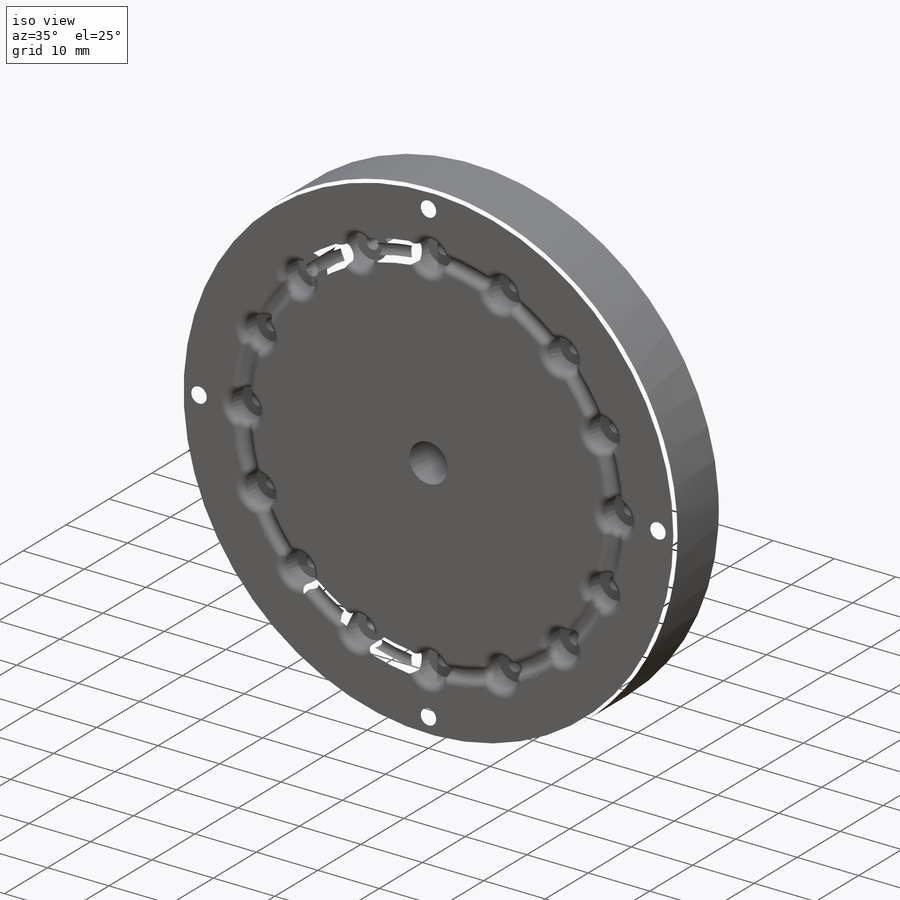
[diagram: iso view]
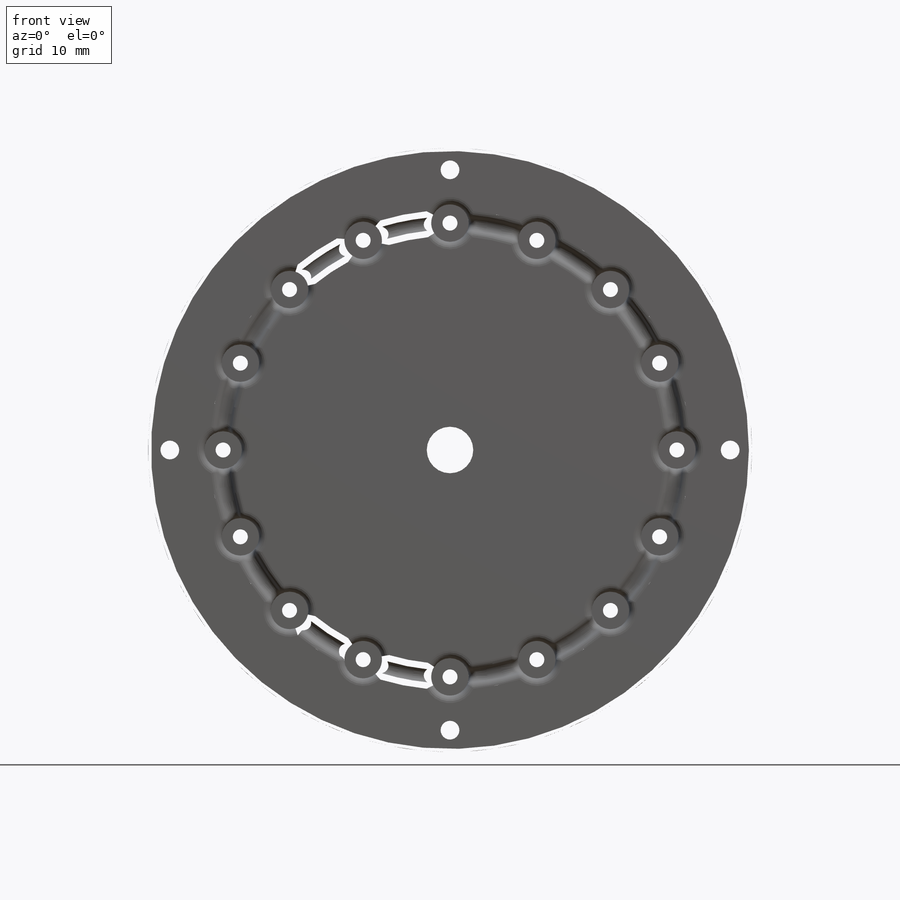
[diagram: front view]
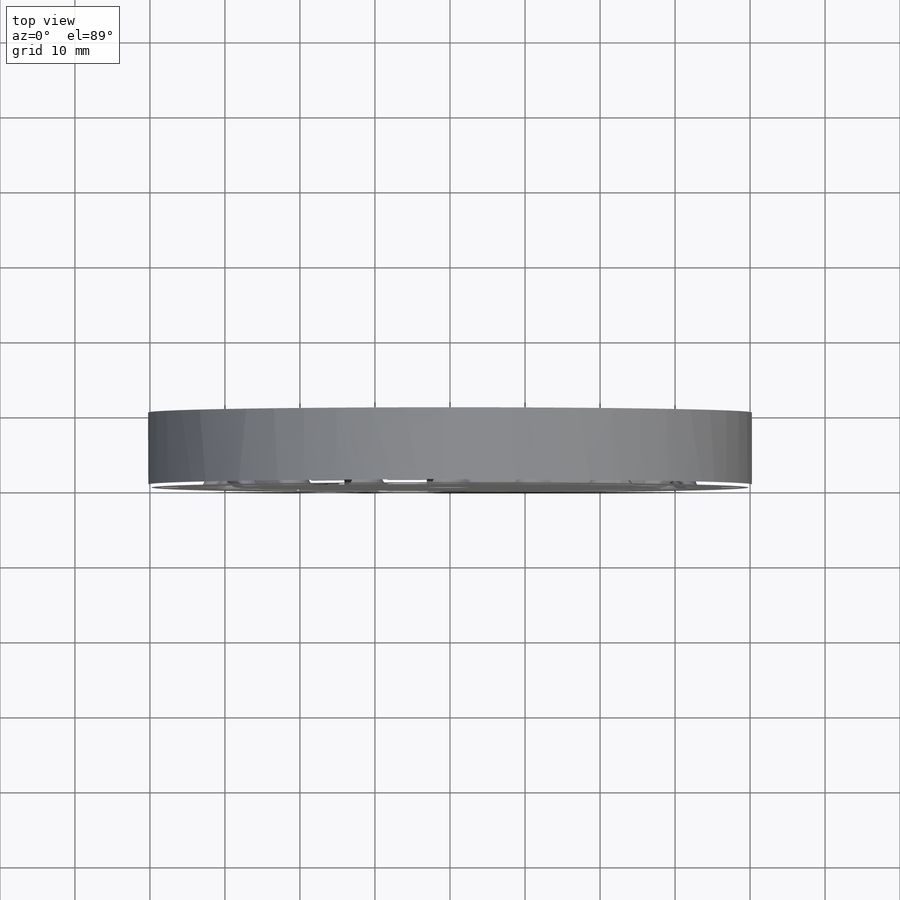
[diagram: top view]
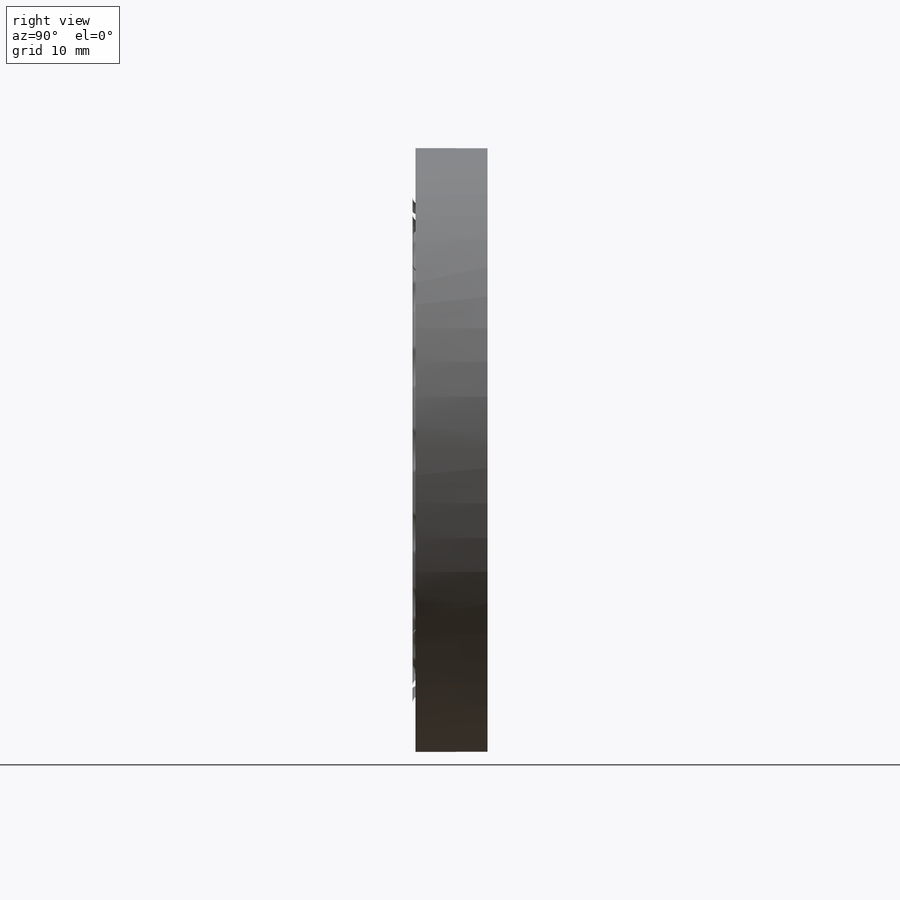
[diagram: right view]
SOLIDWORKS PART (.sldprt)
format: sldprt  version: not decoded by parser v0  size: 1,029,632 bytes
history: native  units: mm
features: fillet x8, sketch x6, plane x3, cut_extrude x3, pattern_circular x2, material x1, extrude x1, sweep x1 (+10 scaffold rows collapsed)
feature tree (35):
  scaffold x10  (default folders/planes/origin — collapsed)
  material  "Matériau <non spécifié>"
  plane  "Plan de face"
  plane  "Plan de dessus"
  plane  "Plan de droite"
  sketch  "Esquisse1"  dims[D1=80.5mm D2=6.2mm]
  extrude  "Boss.-Extru.1"  Depth=10mm
  sketch  "Esquisse2"  dims[D1=5.0mm D2=10.0mm]
  cut_extrude  "Enlèv. mat.-Extru.2"  Depth=3.5mm
  fillet  "Congé1"  Radius=1mm
  sketch  "Esquisse3"  dims[D1=2.0mm]
  cut_extrude  "Enlèv. mat.-Extru.5"  Depth=10mm
  pattern_circular  "Répétition circulaire7"  Count=16 Angle=22.5deg
  sketch  "Esquisse6"
  sketch  "Esquisse7"  dims[D1=2.0mm]
  sweep  "Enlèvement de matière-Balayage2"
  fillet  "Congé3"  Radius=1mm
  fillet  "Congé4"  Radius=1mm
  fillet  "Congé5"  Radius=1mm
  fillet  "Congé6"  Radius=1mm
  fillet  "Congé7"  Radius=1mm
  fillet  "Congé8"  Radius=1mm
  fillet  "Congé9"  Radius=0.4mm
  sketch  "Esquisse8"  dims[D1=2.5mm D2=2.5mm]
  cut_extrude  "Enlèv. mat.-Extru.6"  Depth=10mm
  pattern_circular  "Répétition circulaire9"  Count=4 Angle=90deg
decode coverage: 19 of 21 modeling features carry decoded parameters
note: suppression state not decoded; provenance and decode notes live in map.json
